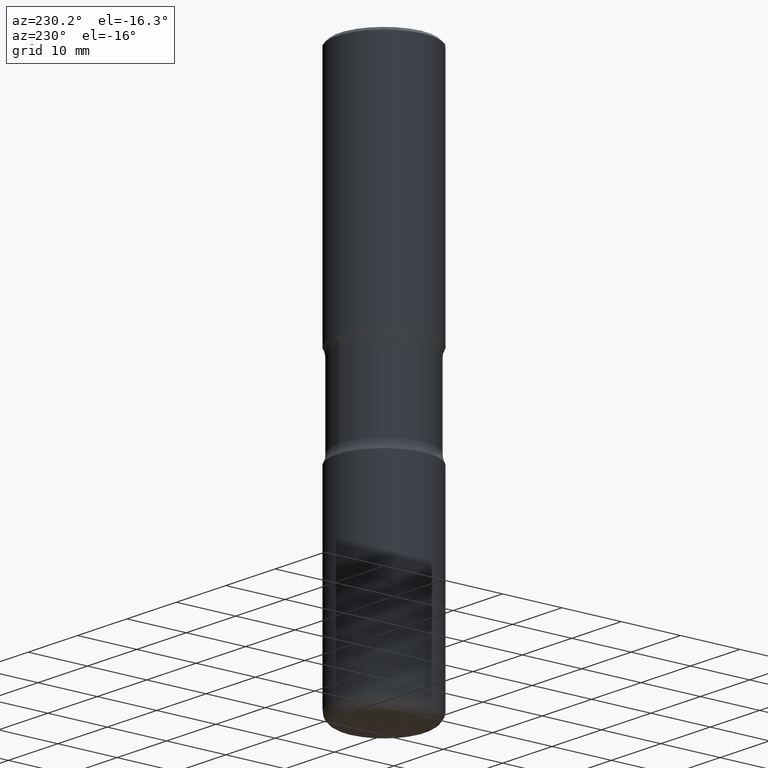
[diagram: clean part render]
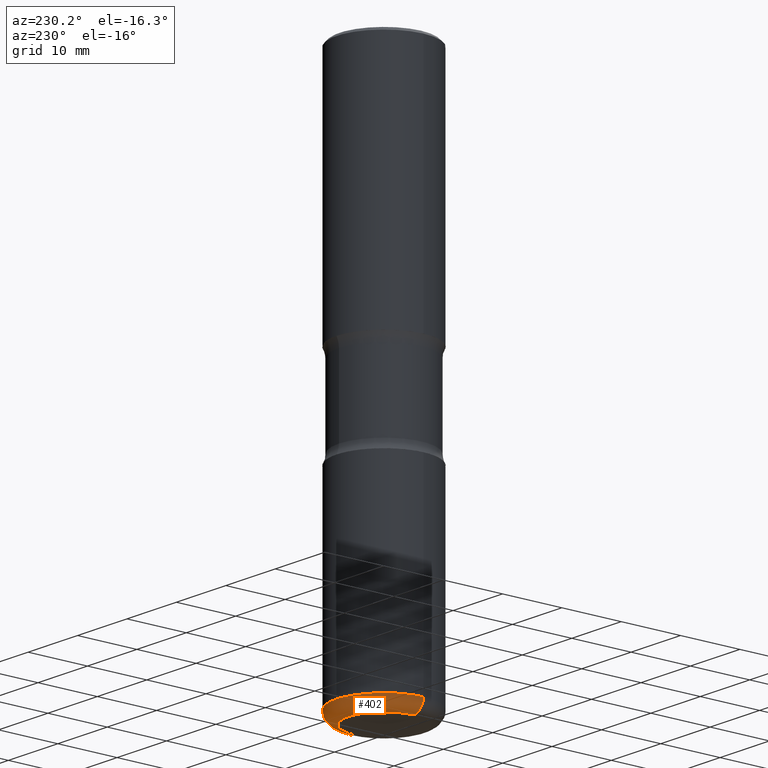
[diagram: same view with one face highlighted and labeled with its STEP entity id]
A machine part, auxiliary view. The second image highlights one B-rep face of the part: STEP entity #402.
In plain terms, the highlighted toroidal blend (fillet) surface has major radius 6.0008 mm and minor (blend) radius 1.999 mm.
Its self-contained STEP definition (entity closure, byte-faithful):
#8 = CIRCLE ( 'NONE', #445, 0.3149500000000001743 ) ;
#30 = AXIS2_PLACEMENT_3D ( 'NONE', #177, #85, #35 ) ;
#35 = DIRECTION ( 'NONE',  ( 1.000000000000000000, -6.982962677686266711E-15, 4.883557194083112901E-29 ) ) ;
#38 = CARTESIAN_POINT ( 'NONE',  ( 8.857732562883184381E-29, -1.264649455742375708E-14, -3.622100000000000097 ) ) ;
#40 = DIRECTION ( 'NONE',  ( -1.000000000000000000, 7.105427357600995548E-15, 0.000000000000000000 ) ) ;
#43 = AXIS2_PLACEMENT_3D ( 'NONE', #475, #351, #40 ) ;
#85 = DIRECTION ( 'NONE',  ( -2.445468806185136597E-29, 3.491481338843145583E-15, 1.000000000000000000 ) ) ;
#90 = VERTEX_POINT ( 'NONE', #157 ) ;
#95 = FACE_OUTER_BOUND ( 'NONE', #479, .T. ) ;
#123 = CIRCLE ( 'NONE', #432, 0.2362500000000002098 ) ;
#130 = CIRCLE ( 'NONE', #271, 0.07869999999999970075 ) ;
#132 = ORIENTED_EDGE ( 'NONE', *, *, #478, .T. ) ;
#157 = CARTESIAN_POINT ( 'NONE',  ( 0.3149500000000000077, -1.457099907139409361E-14, -3.543400000000000993 ) ) ;
#161 = CIRCLE ( 'NONE', #43, 0.07869999999999970075 ) ;
#177 = CARTESIAN_POINT ( 'NONE',  ( 8.665274167836413975E-29, -1.237171497605680374E-14, -3.543400000000000993 ) ) ;
#182 = DIRECTION ( 'NONE',  ( -6.982962677686266711E-15, -1.000000000000000000, 3.491481338843145583E-15 ) ) ;
#197 = CARTESIAN_POINT ( 'NONE',  ( 0.2362500000000002098, -1.429621949002714027E-14, -3.622100000000000097 ) ) ;
#219 = CARTESIAN_POINT ( 'NONE',  ( 8.665274167836413975E-29, -1.237171497605680374E-14, -3.543400000000000993 ) ) ;
#226 = CARTESIAN_POINT ( 'NONE',  ( 0.2362500000000001821, -1.402143990866018536E-14, -3.543400000000000993 ) ) ;
#244 = VERTEX_POINT ( 'NONE', #345 ) ;
#257 = ORIENTED_EDGE ( 'NONE', *, *, #488, .F. ) ;
#268 = ORIENTED_EDGE ( 'NONE', *, *, #310, .F. ) ;
#271 = AXIS2_PLACEMENT_3D ( 'NONE', #226, #182, #274 ) ;
#274 = DIRECTION ( 'NONE',  ( 1.000000000000000000, -6.982962677686271444E-15, 0.000000000000000000 ) ) ;
#305 = CARTESIAN_POINT ( 'NONE',  ( -0.3149500000000000077, -1.013386062978036776E-14, -3.543400000000000993 ) ) ;
#310 = EDGE_CURVE ( 'NONE', #533, #90, #130, .T. ) ;
#345 = CARTESIAN_POINT ( 'NONE',  ( -0.2362500000000002098, -1.055084898698544382E-14, -3.622100000000000097 ) ) ;
#351 = DIRECTION ( 'NONE',  ( 7.105427357601001859E-15, 1.000000000000000000, -3.491481338843145583E-15 ) ) ;
#399 = VERTEX_POINT ( 'NONE', #305 ) ;
#402 = ADVANCED_FACE ( 'NONE', ( #95 ), #515, .T. ) ;
#432 = AXIS2_PLACEMENT_3D ( 'NONE', #38, #519, #556 ) ;
#445 = AXIS2_PLACEMENT_3D ( 'NONE', #219, #511, #558 ) ;
#459 = EDGE_CURVE ( 'NONE', #244, #399, #161, .T. ) ;
#475 = CARTESIAN_POINT ( 'NONE',  ( -0.2362500000000001821, -1.069305776282356497E-14, -3.543400000000000993 ) ) ;
#478 = EDGE_CURVE ( 'NONE', #533, #244, #123, .T. ) ;
#479 = EDGE_LOOP ( 'NONE', ( #132, #513, #257, #268 ) ) ;
#488 = EDGE_CURVE ( 'NONE', #90, #399, #8, .T. ) ;
#511 = DIRECTION ( 'NONE',  ( -2.445468806185136597E-29, 3.491481338843145583E-15, 1.000000000000000000 ) ) ;
#513 = ORIENTED_EDGE ( 'NONE', *, *, #459, .T. ) ;
#515 = TOROIDAL_SURFACE ( 'NONE', #30, 0.2362500000000001821, 0.07869999999999965912 ) ;
#519 = DIRECTION ( 'NONE',  ( -2.445468806185136597E-29, 3.491481338843145583E-15, 1.000000000000000000 ) ) ;
#533 = VERTEX_POINT ( 'NONE', #197 ) ;
#556 = DIRECTION ( 'NONE',  ( 1.000000000000000000, -6.982962677686264344E-15, 0.000000000000000000 ) ) ;
#558 = DIRECTION ( 'NONE',  ( 1.000000000000000000, -6.982962677686265922E-15, 0.000000000000000000 ) ) ;